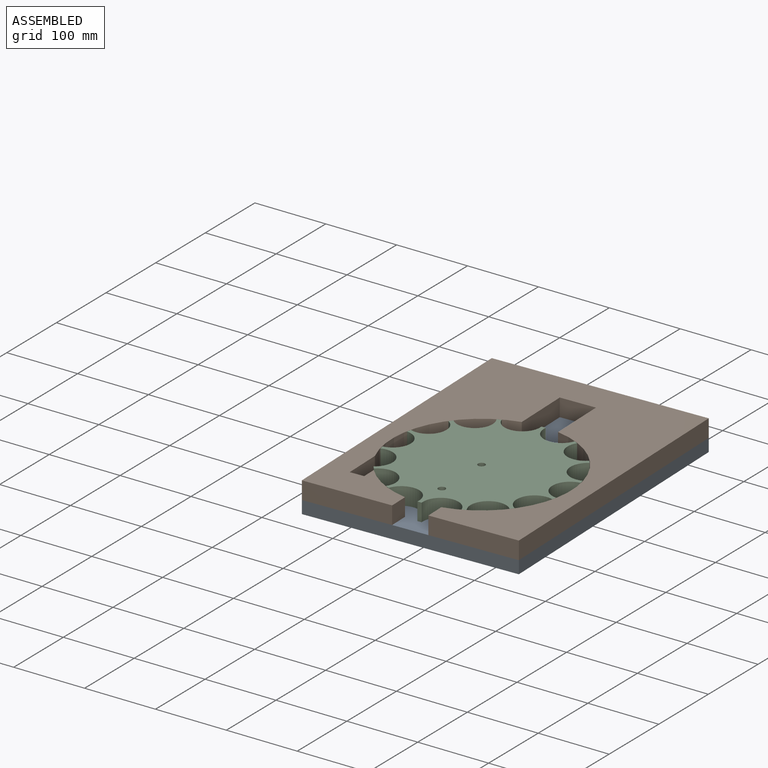
[diagram: assembled view]
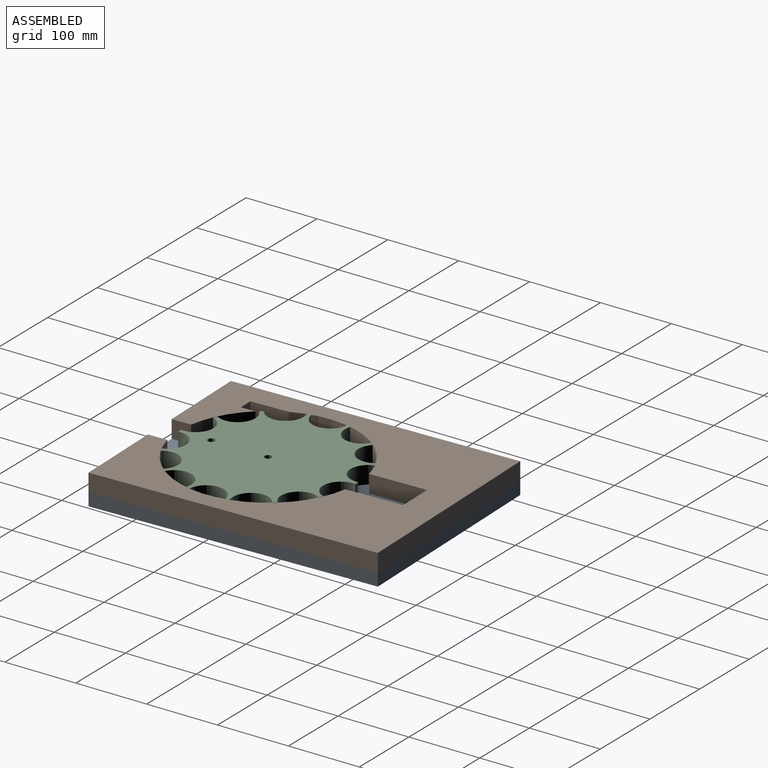
[diagram: assembled view, second angle]
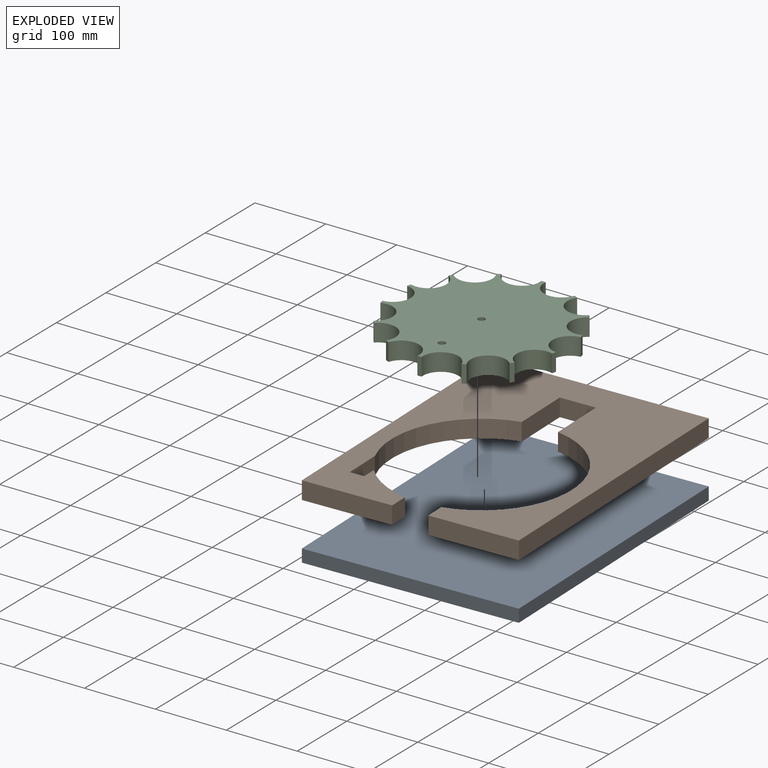
[diagram: exploded view]
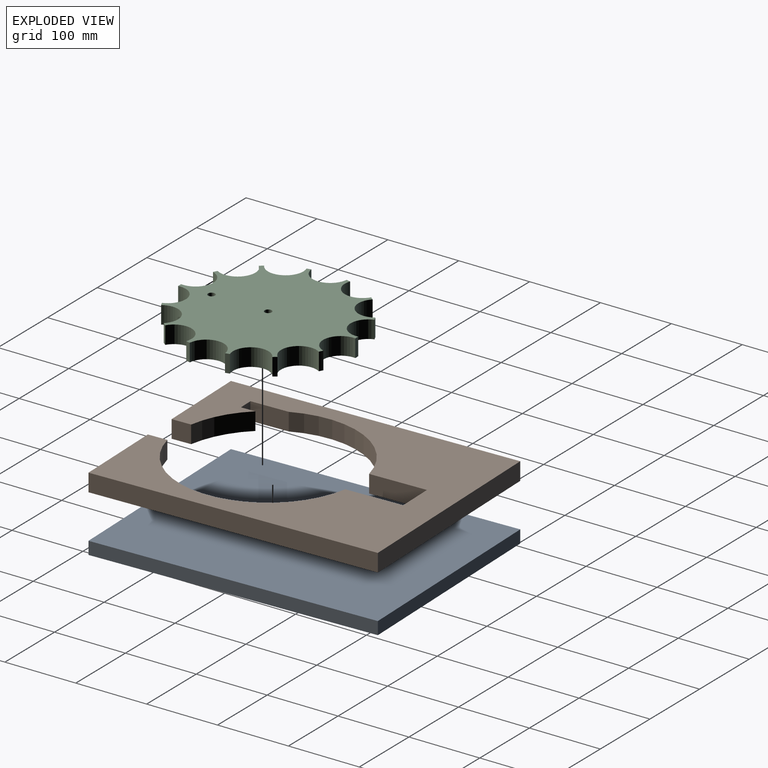
[diagram: exploded view, second angle]
ASSEMBLY  parts=3 mates=2
PART A: 7 faces, bbox 300x400x18 mm
  f0: plane 400x18mm, normal (-1,0,0), area 7200mm2, adj f1,f3,f5,f6
  f1: plane 300x18mm, normal (0,-1,0), area 5400mm2, adj f0,f2,f5,f6
  f2: plane 400x18mm, normal (1,0,0), area 7200mm2, adj f1,f3,f5,f6
  f3: plane 300x18mm, normal (0,1,0), area 5400mm2, adj f0,f2,f5,f6
  f4: cylinder r=5mm len=18mm, axis (0,0,-1), area 565.5mm2, adj f5,f6
  f5: plane 400x300mm, normal (0,0,1), area 119921.5mm2, adj f0,f1,f2,f3,f4
  f6: plane 400x300mm, normal (0,0,-1), area 119921.5mm2, adj f0,f1,f2,f3,f4
PART B: 18 faces, bbox 300x400x25 mm
  f0: plane 125x25mm, normal (0,1,0), area 3125mm2, adj f1,f15,f16,f17
  f1: plane 400x25mm, normal (-1,0,0), area 10000mm2, adj f0,f2,f16,f17
  f2: plane 300x25mm, normal (0,-1,0), area 7500mm2, adj f1,f3,f16,f17
  f3: plane 400x25mm, normal (1,0,0), area 10000mm2, adj f2,f4,f16,f17
  f4: plane 124.9x25mm, normal (0,1,0), area 3122.5mm2, adj f3,f5,f16,f17
  f5: plane 27.04x25mm, normal (-1,0,0), area 675.9mm2, adj f4,f6,f16,f17
  f6: cylinder r=125.5mm len=70.95mm, axis (0,0,-1), area 2102.7mm2, adj f5,f7,f16,f17
  f7: plane 25x20mm, normal (1,0,0), area 500mm2, adj f6,f8,f16,f17
  f8: plane 25x20mm, normal (0,-1,0), area 500mm2, adj f7,f9,f16,f17
  f9: plane 52.99x25mm, normal (-1,0,0), area 1324.9mm2, adj f8,f10,f16,f17
  f10: cylinder r=125.5mm len=170.75mm, axis (0,0,-1), area 5522.2mm2, adj f9,f11,f16,f17
  f11: plane 80x25mm, normal (-1,0,0), area 2000mm2, adj f10,f12,f16,f17
  f12: plane 50.1x25mm, normal (0,1,0), area 1252.5mm2, adj f11,f13,f16,f17
  f13: plane 79.98x25mm, normal (1,0,0), area 1999.5mm2, adj f12,f14,f16,f17
  f14: cylinder r=125.5mm len=245.97mm, axis (0,0,-1), area 8598.3mm2, adj f13,f15,f16,f17
  f15: plane 27.02x25mm, normal (1,0,0), area 675.4mm2, adj f0,f14,f16,f17
  f16: plane 400x300mm, normal (0,0,1), area 64635.2mm2, adj f0,f1,f2,f3,f4,f5,f6,f7
  f17: plane 400x300mm, normal (0,0,-1), area 64635.2mm2, adj f0,f1,f2,f3,f4,f5,f6,f7
PART C: 32 faces, bbox 245x250x25 mm
  f0: cylinder r=25mm len=49.75mm, axis (0,0,-1), area 1838.3mm2, adj f1,f29,f30,f31
  f1: cylinder r=125mm len=25mm, axis (0,0,-1), area 150.4mm2, adj f0,f2,f30,f31
  f2: cylinder r=25mm len=46.33mm, axis (0,0,-1), area 1838.3mm2, adj f1,f3,f30,f31
  f3: cylinder r=125mm len=25mm, axis (0,0,-1), area 150.4mm2, adj f2,f4,f30,f31
  f4: cylinder r=25mm len=42.89mm, axis (0,0,-1), area 1838.3mm2, adj f3,f5,f30,f31
  f5: cylinder r=125mm len=25mm, axis (0,0,-1), area 150.4mm2, adj f4,f6,f30,f31
  f6: cylinder r=25mm len=48.69mm, axis (0,0,-1), area 1838.3mm2, adj f5,f7,f30,f31
  f7: cylinder r=125mm len=25mm, axis (0,0,-1), area 150.4mm2, adj f6,f8,f30,f31
  f8: cylinder r=25mm len=48.69mm, axis (0,0,-1), area 1838.3mm2, adj f7,f9,f30,f31
  f9: cylinder r=125mm len=25mm, axis (0,0,-1), area 150.4mm2, adj f8,f10,f30,f31
  f10: cylinder r=25mm len=42.89mm, axis (0,0,-1), area 1838.3mm2, adj f9,f11,f30,f31
  f11: cylinder r=125mm len=25mm, axis (0,0,-1), area 150.4mm2, adj f10,f12,f30,f31
  f12: cylinder r=25mm len=46.33mm, axis (0,0,-1), area 1838.3mm2, adj f11,f13,f30,f31
  f13: cylinder r=125mm len=25mm, axis (0,0,-1), area 150.4mm2, adj f12,f14,f30,f31
  f14: cylinder r=25mm len=49.75mm, axis (0,0,-1), area 1838.3mm2, adj f13,f15,f30,f31
  f15: cylinder r=125mm len=25mm, axis (0,0,-1), area 150.4mm2, adj f14,f16,f30,f31
  f16: cylinder r=25mm len=46.33mm, axis (0,0,-1), area 1838.3mm2, adj f15,f17,f30,f31
  f17: cylinder r=125mm len=25mm, axis (0,0,-1), area 150.4mm2, adj f16,f18,f30,f31
  f18: cylinder r=25mm len=42.89mm, axis (0,0,-1), area 1838.3mm2, adj f17,f19,f30,f31
  f19: cylinder r=125mm len=25mm, axis (0,0,-1), area 150.4mm2, adj f18,f20,f30,f31
  f20: cylinder r=25mm len=48.69mm, axis (0,0,-1), area 1838.3mm2, adj f19,f21,f30,f31
  f21: cylinder r=125mm len=25mm, axis (0,0,-1), area 150.4mm2, adj f20,f22,f30,f31
  f22: cylinder r=25mm len=48.69mm, axis (0,0,-1), area 1838.3mm2, adj f21,f23,f30,f31
  f23: cylinder r=125mm len=25mm, axis (0,0,-1), area 150.4mm2, adj f22,f24,f30,f31
  f24: cylinder r=25mm len=42.89mm, axis (0,0,-1), area 1838.3mm2, adj f23,f25,f30,f31
  f25: cylinder r=125mm len=25mm, axis (0,0,-1), area 150.4mm2, adj f24,f26,f30,f31
  f26: cylinder r=25mm len=46.33mm, axis (0,0,-1), area 1838.3mm2, adj f25,f29,f30,f31
  f27: cylinder r=5mm len=25mm, axis (0,0,-1), area 785.4mm2, adj f30,f31
  f28: cylinder r=5mm len=25mm, axis (0,0,-1), area 785.4mm2, adj f30,f31
  f29: cylinder r=125mm len=25mm, axis (0,0,-1), area 150.4mm2, adj f0,f26,f30,f31
  f30: plane 250x245mm, normal (0,0,1), area 35769.8mm2, adj f0,f1,f2,f3,f4,f5,f6,f7
  f31: plane 250x245mm, normal (0,0,-1), area 35769.8mm2, adj f0,f1,f2,f3,f4,f5,f6,f7
PLACE A rot(axis=(0,0,-1),178.3deg) t=(-208.37,245.51,477.36)mm
PLACE B rot(axis=(0,0,-1),178.3deg) t=(-238.21,230.79,495.36)mm
PLACE C t=(-236.28,166.08,495.36)mm
MATE parallel A.f0 <-> B.f1  axis (-1,-0.03,0) through (-93.83,420.47,495.36)mm
MATE cylindrical C.f28 <-> A.f4  axis (0,0,1) through (-236.28,166.08,520.36)mm
